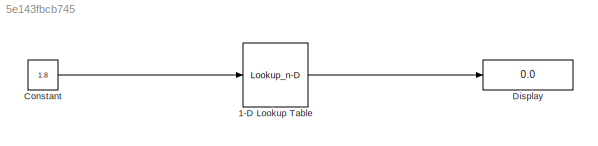
MODEL slx_5e143fbcb745
KIND model
CONFIG AbsTol = auto
CONFIG EnableMultiTasking = off
CONFIG FixedStep = auto
CONFIG MaxStep = auto
CONFIG MinStep = auto
CONFIG RelTol = 1e-3
CONFIG SampleTimeConstraint = Unconstrained
CONFIG Solver = VariableStepAuto
CONFIG SolverName = VariableStepAuto
CONFIG StartTime = 0.0
CONFIG StopTime = 10.0
BLOCK [Lookup_n-D] 1-D Lookup Table
  BreakpointsForDimension1 = V
  InternalRulePriority = Speed
  NumberOfTableDimensions = 1
  Ports = [1, 1]
  RndMeth = Simplest
  Table = I
BLOCK [Constant] Constant
  Value = 1.8
BLOCK [Display] Display
  Decimation = 1
  Ports = [1]
LINE 1-D Lookup Table:1 -> Display:1
LINE Constant:1 -> 1-D Lookup Table:1
